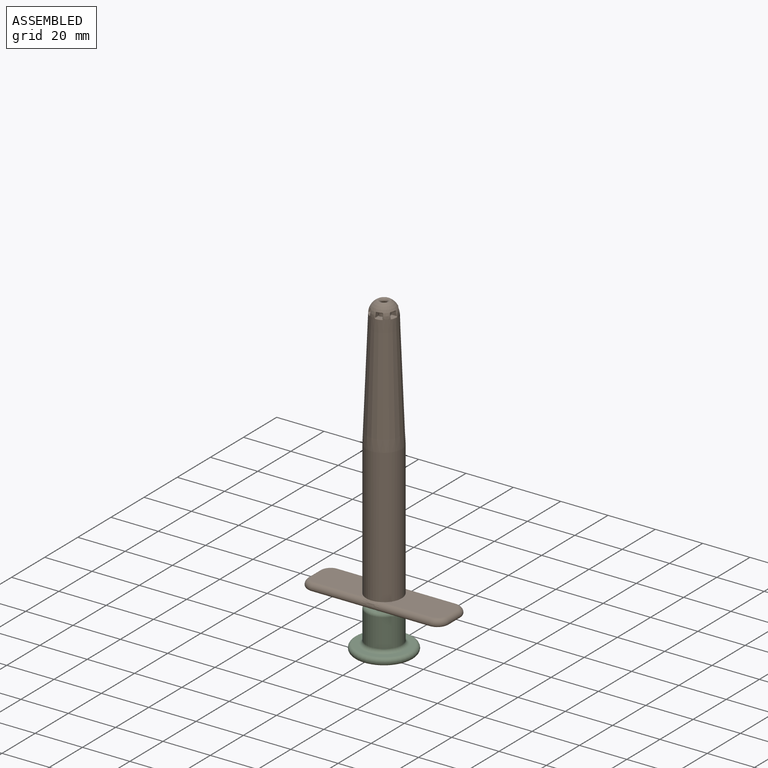
[diagram: assembled view]
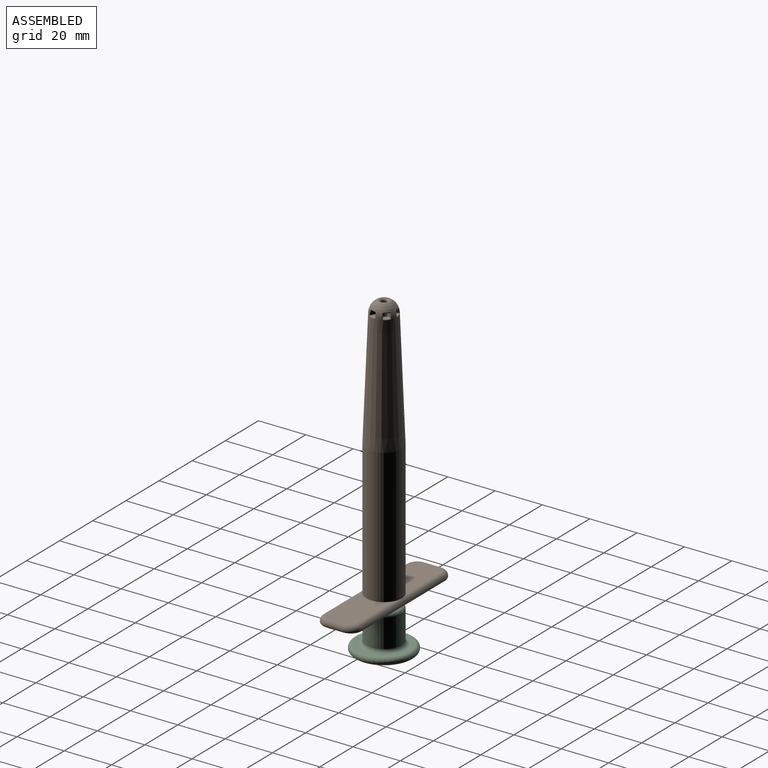
[diagram: assembled view, second angle]
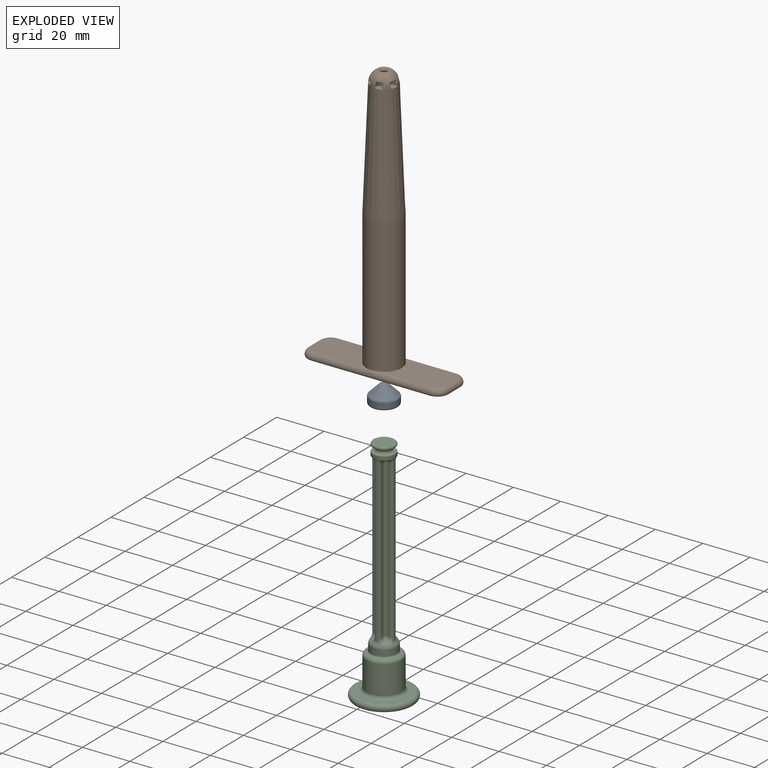
[diagram: exploded view]
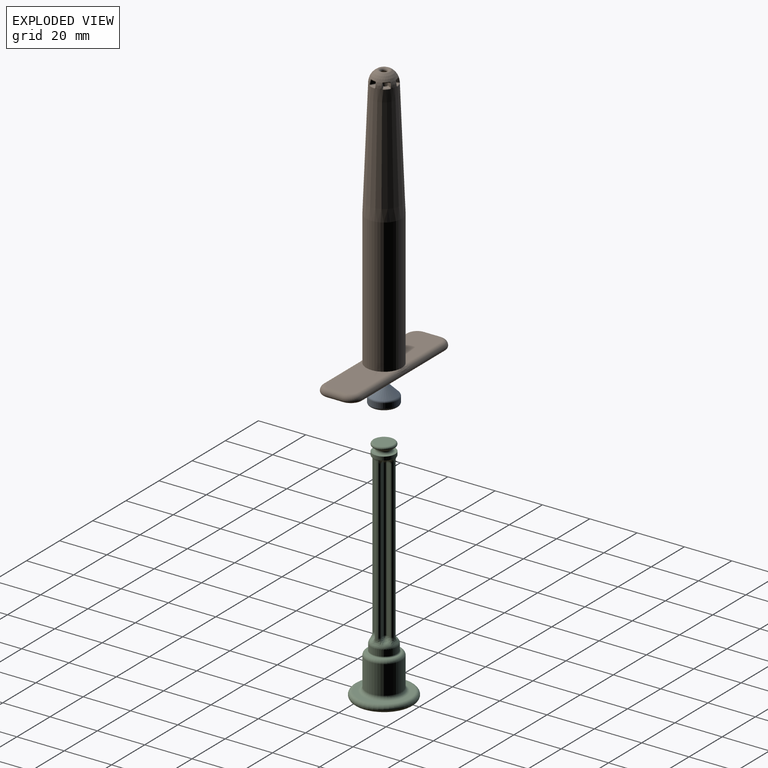
[diagram: exploded view, second angle]
ASSEMBLY  parts=3 mates=2
PART A: 12 faces, bbox 12.8x12.8x8 mm
  f0: cylinder r=5.9mm len=11.8mm, axis (0,0,-1), area 77.3mm2, adj f9,f11
  f1: plane 9.8x9.8mm, normal (0,0,-1), area 22.6mm2, adj f2,f11
  f2: torus R=4.1mm, axis (0,0,1), area 66.9mm2, adj f1,f4
  f3: cylinder r=4.75mm len=9.5mm, axis (0,0,-1), area 0.1mm2, adj f4,f7
  f4: torus R=4mm, axis (0,0,-1), area 32.1mm2, adj f2,f3
  f5: plane 8x8mm, normal (0,0,-1), area 50.3mm2, adj f7
  f6: plane 1.97x1.97mm, normal (0,0,1), area 3.1mm2, adj f10
  f7: torus R=4mm, axis (0,0,1), area 33.1mm2, adj f3,f5
  f8: cone r=1.4mm half-angle=45deg, axis (0,0,-1), area 126.9mm2, adj f9,f10
  f9: torus R=4.9mm, axis (0,0,1), area 28.6mm2, adj f0,f8
  f10: torus R=0.99mm, axis (0,0,1), area 6.7mm2, adj f6,f8
  f11: torus R=4.9mm, axis (0,0,1), area 54.6mm2, adj f0,f1
PART B: 206 faces, bbox 60.8x17.8x116.4 mm
  f0: plane 24.26x13mm, normal (0,0,1), area 276.8mm2, adj f5,f132,f133,f134,f135,f136
  f1: cylinder r=6mm len=12mm, axis (0,0,-1), area 377mm2, adj f6,f119
  f2: cylinder r=2.5mm len=26.31mm, axis (0,0,-1), area 402.9mm2, adj f8,f146,f147,f148,f150,f151,f155,f156
  f3: sphere r=5.5mm, area 114.2mm2, adj f7,f34,f36,f39,f41,f45,f46,f47
  f4: cylinder r=6mm len=69mm, axis (0,0,-1), area 2601.2mm2, adj f8,f120
  f5: cylinder r=7.5mm len=57mm, axis (0,0,-1), area 2686.1mm2, adj f0,f7,f124,f130,f131
  f6: plane 58x15mm, normal (0,0,-1), area 743.2mm2, adj f1,f137,f138,f139,f140,f141,f142,f143
  f7: cone r=5.5mm half-angle=2.3deg, axis (0,0,-1), area 2038.5mm2, adj f3,f5,f36,f37,f40,f42,f46,f50
  f8: cone r=6mm half-angle=45deg, axis (0,0,-1), area 132.2mm2, adj f2,f4
  f9: torus R=1.5mm, axis (0,0,-1), area 6.5mm2, adj f145,f159,f160,f165,f166,f171,f172,f179
  f10: plane 2.01x2.01mm, normal (0,0,-1), area 2.1mm2, adj f108,f114,f115,f172
  f11: plane 1.58x1.4mm, normal (-0.87,0.5,0), area 2.4mm2, adj f113,f114,f118,f167
  f12: plane 1.58x1.4mm, normal (0.5,-0.87,0), area 2.4mm2, adj f105,f108,f109,f154
  f13: plane 2.35x2.35mm, normal (0,0,1), area 2.9mm2, adj f105,f110,f113,f155
  f14: plane 1.77x1.72mm, normal (0,0,-1), area 2.1mm2, adj f94,f100,f101,f193
  f15: plane 1.58x1.4mm, normal (-0.87,-0.5,0), area 2.4mm2, adj f99,f100,f104,f188
  f16: plane 1.83x1.4mm, normal (1,0,0), area 2.4mm2, adj f91,f94,f95,f174
  f17: plane 2.04x2.03mm, normal (0,0,1), area 2.9mm2, adj f91,f96,f99,f175
  f18: plane 1.77x1.72mm, normal (0,0,-1), area 2.1mm2, adj f79,f84,f85,f205
  f19: plane 1.83x1.4mm, normal (0,-1,0), area 2.4mm2, adj f84,f87,f90,f196
  f20: plane 1.58x1.4mm, normal (0.5,0.87,0), area 2.4mm2, adj f78,f79,f80,f195
  f21: plane 2.04x2.03mm, normal (0,0,1), area 2.9mm2, adj f78,f83,f87,f183
  f22: plane 2.01x2.01mm, normal (0,0,-1), area 2.1mm2, adj f65,f70,f71,f198
  f23: plane 1.58x1.4mm, normal (0.87,-0.5,0), area 2.4mm2, adj f70,f73,f76,f177
  f24: plane 1.58x1.4mm, normal (-0.5,0.87,0), area 2.4mm2, adj f64,f65,f66,f191
  f25: plane 2.35x2.35mm, normal (0,0,1), area 2.9mm2, adj f64,f69,f73,f176
  f26: plane 1.77x1.72mm, normal (0,0,-1), area 2.1mm2, adj f52,f56,f57,f179
  f27: plane 1.83x1.4mm, normal (-1,0,0), area 2.4mm2, adj f57,f58,f62,f170
  f28: plane 1.58x1.4mm, normal (0.87,0.5,0), area 2.4mm2, adj f49,f51,f52,f157
  f29: plane 2.04x2.03mm, normal (0,0,1), area 2.9mm2, adj f49,f55,f58,f156
  f30: plane 1.77x1.72mm, normal (0,0,-1), area 2.1mm2, adj f38,f44,f45,f159
  f31: plane 1.83x1.4mm, normal (0,1,0), area 2.4mm2, adj f43,f44,f48,f149
  f32: plane 1.58x1.4mm, normal (-0.5,-0.87,0), area 2.4mm2, adj f35,f38,f39,f152
  f33: plane 2.04x2.03mm, normal (0,0,1), area 2.9mm2, adj f35,f40,f43,f146
  f34: torus R=2.25mm, axis (0,0,-1), area 24.2mm2, adj f3,f145
  f35: cylinder r=0.3mm len=1.75mm, axis (0.87,-0.5,0), area 0.8mm2, adj f32,f33,f36,f37,f148
  f36: bspline ~0.49x0.48mm, area 0.1mm2, adj f3,f7,f35,f37,f39
  f37: bspline ~0.69x0.5mm, area 0.2mm2, adj f7,f35,f36,f40
  f38: cylinder r=0.3mm len=1.61mm, axis (-0.87,0.5,0), area 0.7mm2, adj f30,f32,f41,f158,f165
  f39: torus R=5.19mm, axis (-0.5,-0.87,0), area 0.7mm2, adj f3,f32,f36,f41
  f40: torus R=5.21mm, axis (0,0,1), area 1mm2, adj f7,f33,f37,f42
  f41: bspline ~0.83x0.8mm, area 0.4mm2, adj f3,f38,f39,f45
  f42: bspline ~0.7x0.5mm, area 0.2mm2, adj f7,f40,f43,f46
  f43: cylinder r=0.3mm len=1.85mm, axis (-1,0,0), area 0.8mm2, adj f31,f33,f42,f46,f147
  f44: cylinder r=0.3mm len=1.69mm, axis (1,0,0), area 0.7mm2, adj f30,f31,f47,f153,f160
  f45: torus R=4.66mm, axis (0,0,1), area 1.2mm2, adj f3,f30,f41,f47
  f46: bspline ~0.49x0.38mm, area 0.1mm2, adj f3,f7,f42,f43,f48
  f47: bspline ~0.78x0.77mm, area 0.4mm2, adj f3,f44,f45,f48
  f48: torus R=5.19mm, axis (0,-1,0), area 0.7mm2, adj f3,f31,f46,f47
  f49: cylinder r=0.3mm len=1.75mm, axis (-0.5,0.87,0), area 0.8mm2, adj f28,f29,f50,f53,f151
  f50: bspline ~0.49x0.48mm, area 0.1mm2, adj f3,f7,f49,f51,f53
  f51: torus R=5.19mm, axis (0.87,0.5,0), area 0.7mm2, adj f3,f28,f50,f54
  f52: cylinder r=0.3mm len=1.61mm, axis (0.5,-0.87,0), area 0.7mm2, adj f26,f28,f54,f164,f171
  f53: bspline ~0.69x0.5mm, area 0.2mm2, adj f7,f49,f50,f55
  f54: bspline ~0.87x0.78mm, area 0.4mm2, adj f3,f51,f52,f56
  f55: torus R=5.21mm, axis (0,0,1), area 1mm2, adj f7,f29,f53,f59
  f56: torus R=4.66mm, axis (0,0,1), area 1.2mm2, adj f3,f26,f54,f60
  f57: cylinder r=0.3mm len=1.69mm, axis (0,1,0), area 0.7mm2, adj f26,f27,f60,f178,f186
  f58: cylinder r=0.3mm len=1.85mm, axis (0,-1,0), area 0.8mm2, adj f27,f29,f59,f61,f163
  f59: bspline ~0.7x0.5mm, area 0.2mm2, adj f7,f55,f58,f61
  f60: bspline ~0.8x0.68mm, area 0.4mm2, adj f3,f56,f57,f62
  f61: bspline ~0.49x0.38mm, area 0.1mm2, adj f3,f7,f58,f59,f62
  f62: torus R=5.19mm, axis (1,0,0), area 0.7mm2, adj f3,f27,f60,f61
  f63: bspline ~0.49x0.44mm, area 0.1mm2, adj f3,f7,f64,f66,f67
  f64: cylinder r=0.3mm len=1.75mm, axis (-0.87,-0.5,0), area 0.8mm2, adj f24,f25,f63,f67,f184
  f65: cylinder r=0.3mm len=1.61mm, axis (0.87,0.5,0), area 0.7mm2, adj f22,f24,f68,f197,f202
  f66: torus R=5.19mm, axis (0.5,-0.87,0), area 0.7mm2, adj f3,f24,f63,f68
  f67: bspline ~0.61x0.57mm, area 0.2mm2, adj f7,f63,f64,f69
  f68: bspline ~0.82x0.8mm, area 0.4mm2, adj f3,f65,f66,f71
  f69: torus R=5.21mm, axis (0,0,1), area 1mm2, adj f7,f25,f67,f72
  f70: cylinder r=0.3mm len=1.61mm, axis (-0.5,-0.87,0), area 0.7mm2, adj f22,f23,f74,f185,f192
  f71: torus R=4.66mm, axis (0,0,1), area 1.2mm2, adj f3,f22,f68,f74
  f72: bspline ~0.61x0.57mm, area 0.2mm2, adj f7,f69,f73,f75
  f73: cylinder r=0.3mm len=1.75mm, axis (0.5,0.87,0), area 0.8mm2, adj f23,f25,f72,f75,f169
  f74: bspline ~0.83x0.78mm, area 0.4mm2, adj f3,f70,f71,f76
  f75: bspline ~0.49x0.44mm, area 0.1mm2, adj f3,f7,f72,f73,f76
  f76: torus R=5.19mm, axis (0.87,-0.5,0), area 0.7mm2, adj f3,f23,f74,f75
  f77: bspline ~0.49x0.48mm, area 0.1mm2, adj f3,f7,f78,f80,f81
  f78: cylinder r=0.3mm len=1.75mm, axis (-0.87,0.5,0), area 0.8mm2, adj f20,f21,f77,f81,f189
  f79: cylinder r=0.3mm len=1.61mm, axis (0.87,-0.5,0), area 0.7mm2, adj f18,f20,f82,f200,f203
  f80: torus R=5.19mm, axis (0.5,0.87,0), area 0.7mm2, adj f3,f20,f77,f82
  f81: bspline ~0.69x0.5mm, area 0.2mm2, adj f7,f77,f78,f83
  f82: bspline ~0.83x0.8mm, area 0.4mm2, adj f3,f79,f80,f85
  f83: torus R=5.21mm, axis (0,0,1), area 1mm2, adj f7,f21,f81,f86
  f84: cylinder r=0.3mm len=1.69mm, axis (-1,0,0), area 0.7mm2, adj f18,f19,f88,f201,f204
  f85: torus R=4.66mm, axis (0,0,1), area 1.2mm2, adj f3,f18,f82,f88
  f86: bspline ~0.7x0.5mm, area 0.2mm2, adj f7,f83,f87,f89
  f87: cylinder r=0.3mm len=1.85mm, axis (1,0,0), area 0.8mm2, adj f19,f21,f86,f89,f190
  f88: bspline ~0.78x0.77mm, area 0.4mm2, adj f3,f84,f85,f90
  f89: bspline ~0.49x0.38mm, area 0.1mm2, adj f3,f7,f86,f87,f90
  f90: torus R=5.19mm, axis (0,-1,0), area 0.7mm2, adj f3,f19,f88,f89
  f91: cylinder r=0.3mm len=1.85mm, axis (0,1,0), area 0.8mm2, adj f16,f17,f92,f93,f168
  f92: bspline ~0.49x0.38mm, area 0.1mm2, adj f3,f7,f91,f93,f95
  f93: bspline ~0.7x0.5mm, area 0.2mm2, adj f7,f91,f92,f96
  f94: cylinder r=0.3mm len=1.69mm, axis (0,-1,0), area 0.7mm2, adj f14,f16,f97,f181,f187
  f95: torus R=5.19mm, axis (1,0,0), area 0.7mm2, adj f3,f16,f92,f97
  f96: torus R=5.21mm, axis (0,0,1), area 1mm2, adj f7,f17,f93,f98
  f97: bspline ~0.8x0.68mm, area 0.4mm2, adj f3,f94,f95,f101
  f98: bspline ~0.69x0.5mm, area 0.2mm2, adj f7,f96,f99,f102
  f99: cylinder r=0.3mm len=1.75mm, axis (0.5,-0.87,0), area 0.8mm2, adj f15,f17,f98,f102,f182
  f100: cylinder r=0.3mm len=1.61mm, axis (-0.5,0.87,0), area 0.7mm2, adj f14,f15,f103,f194,f199
  f101: torus R=4.66mm, axis (0,0,1), area 1.2mm2, adj f3,f14,f97,f103
  f102: bspline ~0.49x0.48mm, area 0.1mm2, adj f3,f7,f98,f99,f104
  f103: bspline ~0.87x0.78mm, area 0.4mm2, adj f3,f100,f101,f104
  f104: torus R=5.19mm, axis (0.87,0.5,0), area 0.7mm2, adj f3,f15,f102,f103
  f105: cylinder r=0.3mm len=1.75mm, axis (0.87,0.5,0), area 0.8mm2, adj f12,f13,f106,f107,f150
  f106: bspline ~0.49x0.44mm, area 0.1mm2, adj f3,f7,f105,f107,f109
  f107: bspline ~0.61x0.57mm, area 0.2mm2, adj f7,f105,f106,f110
  f108: cylinder r=0.3mm len=1.61mm, axis (-0.87,-0.5,0), area 0.7mm2, adj f10,f12,f111,f161,f166
  f109: torus R=5.19mm, axis (0.5,-0.87,0), area 0.7mm2, adj f3,f12,f106,f111
  f110: torus R=5.21mm, axis (0,0,1), area 1mm2, adj f7,f13,f107,f112
  f111: bspline ~0.82x0.8mm, area 0.4mm2, adj f3,f108,f109,f115
  f112: bspline ~0.61x0.57mm, area 0.2mm2, adj f7,f110,f113,f116
  f113: cylinder r=0.3mm len=1.75mm, axis (-0.5,-0.87,0), area 0.8mm2, adj f11,f13,f112,f116,f162
  f114: cylinder r=0.3mm len=1.61mm, axis (0.5,0.87,0), area 0.7mm2, adj f10,f11,f117,f173,f180
  f115: torus R=4.66mm, axis (0,0,1), area 1.2mm2, adj f3,f10,f111,f117
  f116: bspline ~0.49x0.44mm, area 0.1mm2, adj f3,f7,f112,f113,f118
  f117: bspline ~0.83x0.78mm, area 0.4mm2, adj f3,f114,f115,f118
  f118: torus R=5.19mm, axis (0.87,-0.5,0), area 0.7mm2, adj f3,f11,f116,f117
  f119: cone r=6mm half-angle=45deg, axis (0,0,-1), area 15mm2, adj f1,f121
  f120: cone r=5.5mm half-angle=45deg, axis (0,0,1), area 15mm2, adj f4,f121
  f121: torus R=5.92mm, axis (0,0,1), area 16.7mm2, adj f119,f120
  f122: plane 7.49x0.27mm, normal (0,-1,0), area 1mm2, adj f130,f139
  f123: plane 7.49x0.27mm, normal (0,1,0), area 1mm2, adj f131,f142
  f124: plane 24.26x13mm, normal (0,0,1), area 276.8mm2, adj f5,f125,f126,f127,f128,f129
  f125: cylinder r=2mm len=7mm, axis (0,1,0), area 22mm2, adj f124,f126,f127,f138
  f126: torus R=3mm, axis (0,0,1), area 21.1mm2, adj f124,f125,f128,f137
  f127: torus R=3mm, axis (0,0,1), area 21.1mm2, adj f124,f125,f129,f140
  f128: cylinder r=2mm len=21.26mm, axis (-1,0,0), area 66.8mm2, adj f124,f126,f130,f139
  f129: cylinder r=2mm len=21.26mm, axis (1,0,0), area 66.8mm2, adj f124,f127,f131,f142
  f130: bspline ~7.48x2mm, area 18.3mm2, adj f5,f122,f128,f132
  f131: bspline ~7.48x2mm, area 18.3mm2, adj f5,f123,f129,f133
  f132: cylinder r=2mm len=21.26mm, axis (-1,0,0), area 66.8mm2, adj f0,f130,f134,f139
  f133: cylinder r=2mm len=21.26mm, axis (1,0,0), area 66.8mm2, adj f0,f131,f135,f142
  f134: torus R=3mm, axis (0,0,1), area 21.1mm2, adj f0,f132,f136,f141
  f135: torus R=3mm, axis (0,0,1), area 21.1mm2, adj f0,f133,f136,f144
  f136: cylinder r=2mm len=7mm, axis (0,-1,0), area 22mm2, adj f0,f134,f135,f143
  f137: torus R=4mm, axis (0,0,1), area 11.4mm2, adj f6,f126,f138,f139
  f138: cylinder r=1mm len=7mm, axis (0,-1,0), area 11mm2, adj f6,f125,f137,f140
  f139: cylinder r=1mm len=50mm, axis (1,0,0), area 78.5mm2, adj f6,f122,f128,f132,f137,f141
  f140: torus R=4mm, axis (0,0,1), area 11.4mm2, adj f6,f127,f138,f142
  f141: torus R=4mm, axis (0,0,1), area 11.4mm2, adj f6,f134,f139,f143
  f142: cylinder r=1mm len=50mm, axis (-1,0,0), area 78.5mm2, adj f6,f123,f129,f133,f140,f144
  f143: cylinder r=1mm len=7mm, axis (0,1,0), area 11mm2, adj f6,f136,f141,f144
  f144: torus R=4mm, axis (0,0,1), area 11.4mm2, adj f6,f135,f142,f143
  f145: torus R=5.58mm, axis (0,0,-1), area 15.8mm2, adj f9,f34
  f146: torus R=3.5mm, axis (0,0,1), area 1.6mm2, adj f2,f33,f147,f148
  f147: bspline ~1.58x1.1mm, area 1.3mm2, adj f2,f43,f146,f149,f150
  f148: bspline ~1.46x1.37mm, area 1.3mm2, adj f2,f35,f146,f151,f152
  f149: cylinder r=1mm len=1.4mm, axis (0,0,-1), area 1.7mm2, adj f31,f147,f153,f154
  f150: bspline ~1.46x1.37mm, area 1.3mm2, adj f2,f105,f147,f154,f155
  f151: bspline ~1.58x1.46mm, area 1.3mm2, adj f2,f49,f148,f156,f157
  f152: cylinder r=1mm len=1.4mm, axis (0,0,-1), area 1.7mm2, adj f32,f148,f157,f158
  f153: bspline ~0.98x0.75mm, area 0.2mm2, adj f44,f149,f160,f161
  f154: cylinder r=1mm len=1.4mm, axis (0,0,-1), area 1.7mm2, adj f12,f149,f150,f161
  f155: torus R=3.5mm, axis (0,0,1), area 1.6mm2, adj f2,f13,f150,f162
  f156: torus R=3.5mm, axis (0,0,1), area 1.6mm2, adj f2,f29,f151,f163
  f157: cylinder r=1mm len=1.4mm, axis (0,0,-1), area 1.7mm2, adj f28,f151,f152,f164
  f158: bspline ~1.21x0.73mm, area 0.2mm2, adj f38,f152,f164,f165
  f159: torus R=3.23mm, axis (0,0,1), area 1mm2, adj f9,f30,f160,f165
  f160: bspline ~1.11x1.03mm, area 0.7mm2, adj f9,f44,f153,f159,f166
  f161: bspline ~1.12x0.73mm, area 0.2mm2, adj f108,f153,f154,f166
  f162: bspline ~1.58x1.44mm, area 1.3mm2, adj f2,f113,f155,f167,f168
  f163: bspline ~1.37x1.13mm, area 1.3mm2, adj f2,f58,f156,f169,f170
  f164: bspline ~1.21x0.73mm, area 0.2mm2, adj f52,f157,f158,f171
  f165: bspline ~1.22x0.88mm, area 0.7mm2, adj f9,f38,f158,f159,f171
  f166: bspline ~1.29x1.02mm, area 0.7mm2, adj f9,f108,f160,f161,f172
  f167: cylinder r=1mm len=1.4mm, axis (0,0,-1), area 1.7mm2, adj f11,f162,f173,f174
  f168: bspline ~1.37x1.13mm, area 1.3mm2, adj f2,f91,f162,f174,f175
  f169: bspline ~1.58x1.44mm, area 1.3mm2, adj f2,f73,f163,f176,f177
  f170: cylinder r=1mm len=1.4mm, axis (0,0,-1), area 1.7mm2, adj f27,f163,f177,f178
  f171: bspline ~1.2x0.81mm, area 0.7mm2, adj f9,f52,f164,f165,f179
  f172: torus R=3.23mm, axis (0,0,1), area 1mm2, adj f9,f10,f166,f180
  f173: bspline ~1.12x0.73mm, area 0.2mm2, adj f114,f167,f180,f181
  f174: cylinder r=1mm len=1.4mm, axis (0,0,-1), area 1.7mm2, adj f16,f167,f168,f181
  f175: torus R=3.5mm, axis (0,0,1), area 1.6mm2, adj f2,f17,f168,f182
  f176: torus R=3.5mm, axis (0,0,1), area 1.6mm2, adj f2,f25,f169,f184
  f177: cylinder r=1mm len=1.4mm, axis (0,0,-1), area 1.7mm2, adj f23,f169,f170,f185
  f178: bspline ~0.98x0.75mm, area 0.2mm2, adj f57,f170,f185,f186
  f179: torus R=3.23mm, axis (0,0,1), area 1mm2, adj f9,f26,f171,f186
  f180: bspline ~1.31x1.09mm, area 0.7mm2, adj f9,f114,f172,f173,f187
  f181: bspline ~0.98x0.75mm, area 0.2mm2, adj f94,f173,f174,f187
  f182: bspline ~1.58x1.46mm, area 1.3mm2, adj f2,f99,f175,f188,f189
  f183: torus R=3.5mm, axis (0,0,1), area 1.6mm2, adj f2,f21,f189,f190
  f184: bspline ~1.46x1.37mm, area 1.3mm2, adj f2,f64,f176,f190,f191
  f185: bspline ~1.12x0.73mm, area 0.2mm2, adj f70,f177,f178,f192
  f186: bspline ~1.02x0.99mm, area 0.7mm2, adj f9,f57,f178,f179,f192
  f187: bspline ~1.02x0.99mm, area 0.7mm2, adj f9,f94,f180,f181,f193
  f188: cylinder r=1mm len=1.4mm, axis (0,0,-1), area 1.7mm2, adj f15,f182,f194,f195
  f189: bspline ~1.46x1.37mm, area 1.3mm2, adj f2,f78,f182,f183,f195
  f190: bspline ~1.58x1.1mm, area 1.3mm2, adj f2,f87,f183,f184,f196
  f191: cylinder r=1mm len=1.4mm, axis (0,0,-1), area 1.7mm2, adj f24,f184,f196,f197
  f192: bspline ~1.31x1.09mm, area 0.7mm2, adj f9,f70,f185,f186,f198
  f193: torus R=3.23mm, axis (0,0,1), area 1mm2, adj f9,f14,f187,f199
  f194: bspline ~1.21x0.73mm, area 0.2mm2, adj f100,f188,f199,f200
  f195: cylinder r=1mm len=1.4mm, axis (0,0,-1), area 1.7mm2, adj f20,f188,f189,f200
  f196: cylinder r=1mm len=1.4mm, axis (0,0,-1), area 1.7mm2, adj f19,f190,f191,f201
  f197: bspline ~1.12x0.73mm, area 0.2mm2, adj f65,f191,f201,f202
  f198: torus R=3.23mm, axis (0,0,1), area 1mm2, adj f9,f22,f192,f202
  f199: bspline ~1.2x0.81mm, area 0.7mm2, adj f9,f100,f193,f194,f203
  f200: bspline ~1.21x0.73mm, area 0.2mm2, adj f79,f194,f195,f203
  f201: bspline ~0.98x0.75mm, area 0.2mm2, adj f84,f196,f197,f204
  f202: bspline ~1.26x0.98mm, area 0.7mm2, adj f9,f65,f197,f198,f204
  f203: bspline ~1.2x0.81mm, area 0.7mm2, adj f9,f79,f199,f200,f205
  f204: bspline ~1.11x1.03mm, area 0.7mm2, adj f9,f84,f201,f202,f205
  f205: torus R=3.23mm, axis (0,0,1), area 1mm2, adj f9,f18,f203,f204
PART C: 108 faces, bbox 27.1x27.1x98 mm
  f0: plane 0.1x0.1mm, normal (0,0,-1), area 0mm2, adj f17,f83,f86
  f1: plane 0.1x0.1mm, normal (0,0,-1), area 0mm2, adj f17,f89,f92
  f2: plane 0.1x0.1mm, normal (0,0,-1), area 0mm2, adj f17,f67,f70
  f3: cylinder r=5.5mm len=11mm, axis (0,0,-1), area 86.4mm2, adj f19,f107
  f4: plane 66.21x1.25mm, normal (0,-1,0), area 82.6mm2, adj f20,f50,f59,f70,f72
  f5: plane 66.21x1.26mm, normal (-1,0,0), area 82.6mm2, adj f21,f59,f61,f65,f67
  f6: plane 68.58x0.94mm, normal (0,-1,0), area 34.4mm2, adj f23,f33,f34,f61,f63,f66
  f7: plane 66.21x1.25mm, normal (1,0,0), area 82.6mm2, adj f25,f34,f53,f71,f73
  f8: plane 66.21x1.25mm, normal (0,-1,0), area 82.6mm2, adj f27,f40,f53,f76,f78
  f9: plane 68.58x0.94mm, normal (1,0,0), area 34.4mm2, adj f29,f39,f40,f45,f46,f82
  f10: plane 66.22x1.26mm, normal (0,1,0), area 82.6mm2, adj f31,f46,f55,f87,f89
  f11: plane 66.21x1.25mm, normal (1,0,0), area 82.6mm2, adj f30,f43,f55,f92,f94
  f12: plane 68.58x0.94mm, normal (0,1,0), area 34.4mm2, adj f28,f36,f37,f42,f43,f93
  f13: plane 66.22x1.26mm, normal (-1,0,0), area 82.6mm2, adj f26,f37,f57,f86,f88
  f14: plane 66.21x1.26mm, normal (0,1,0), area 82.6mm2, adj f24,f47,f57,f81,f83
  f15: plane 68.58x0.94mm, normal (-1,0,0), area 34.4mm2, adj f22,f47,f48,f50,f51,f77
  f16: plane 0.1x0.1mm, normal (0,0,-1), area 0mm2, adj f17,f73,f76
  f17: cylinder r=4.67mm len=9.34mm, axis (0,0,-1), area 44mm2, adj f0,f1,f2,f16,f18,f64,f65,f66
  f18: plane 9.34x9.34mm, normal (0,0,1), area 18.3mm2, adj f17,f98
  f19: torus R=3.5mm, axis (0,0,1), area 45.7mm2, adj f3,f20,f21,f22,f23,f24,f25,f26
  f20: bspline ~5.29x3.62mm, area 3.8mm2, adj f4,f19,f51,f52,f60
  f21: bspline ~5.27x3.45mm, area 3.8mm2, adj f5,f19,f60,f62,f63
  f22: bspline ~6.91x2.15mm, area 3.7mm2, adj f15,f19,f49,f52
  f23: bspline ~6.91x2.15mm, area 3.7mm2, adj f6,f19,f32,f62
  f24: bspline ~5.27x3.45mm, area 3.8mm2, adj f14,f19,f48,f49,f58
  f25: bspline ~5.29x3.62mm, area 3.8mm2, adj f7,f19,f32,f33,f54
  f26: bspline ~5.3x3.47mm, area 3.8mm2, adj f13,f19,f35,f36,f58
  f27: bspline ~4.98x3.48mm, area 3.8mm2, adj f8,f19,f38,f39,f54
  f28: bspline ~6.91x2.15mm, area 3.7mm2, adj f12,f19,f35,f41
  f29: bspline ~6.91x2.15mm, area 3.7mm2, adj f9,f19,f38,f44
  f30: bspline ~4.98x3.48mm, area 3.8mm2, adj f11,f19,f41,f42,f56
  f31: bspline ~5.3x3.47mm, area 3.8mm2, adj f10,f19,f44,f45,f56
  f32: bspline ~2.39x1.99mm, area 1.2mm2, adj f23,f25,f33
  f33: bspline ~2.54x1.38mm, area 1.5mm2, adj f6,f25,f32,f34
  f34: cylinder r=1mm len=67.41mm, axis (0,0,1), area 105mm2, adj f6,f7,f33,f68
  f35: bspline ~2.64x2.1mm, area 1.2mm2, adj f26,f28,f36
  f36: bspline ~2.54x1.38mm, area 1.5mm2, adj f12,f26,f35,f37
  f37: cylinder r=1mm len=67.41mm, axis (0,0,1), area 105mm2, adj f12,f13,f36,f90
  f38: bspline ~2.64x2.1mm, area 1.2mm2, adj f27,f29,f39
  f39: bspline ~2.54x1.38mm, area 1.5mm2, adj f9,f27,f38,f40
  f40: cylinder r=1mm len=67.41mm, axis (0,0,1), area 105mm2, adj f8,f9,f39,f80
  f41: bspline ~2.64x2.1mm, area 1.2mm2, adj f28,f30,f42
  f42: bspline ~2.54x1.38mm, area 1.5mm2, adj f12,f30,f41,f43
  f43: cylinder r=1mm len=67.41mm, axis (0,0,-1), area 105mm2, adj f11,f12,f42,f95
  f44: bspline ~2.39x1.99mm, area 1.2mm2, adj f29,f31,f45
  f45: bspline ~2.54x1.38mm, area 1.5mm2, adj f9,f31,f44,f46
  f46: cylinder r=1mm len=67.41mm, axis (0,0,-1), area 105mm2, adj f9,f10,f45,f84
  f47: cylinder r=1mm len=67.41mm, axis (0,0,1), area 105mm2, adj f14,f15,f48,f79
  f48: bspline ~2.54x1.38mm, area 1.5mm2, adj f15,f24,f47,f49
  f49: bspline ~2.64x2.1mm, area 1.2mm2, adj f22,f24,f48
  f50: cylinder r=1mm len=67.41mm, axis (0,0,-1), area 105mm2, adj f4,f15,f51,f74
  f51: bspline ~2.54x1.38mm, area 1.5mm2, adj f15,f20,f50,f52
  f52: bspline ~2.64x2.1mm, area 1.2mm2, adj f20,f22,f51
  f53: cylinder r=1mm len=66.03mm, axis (0,0,1), area 103.7mm2, adj f7,f8,f54,f75
  f54: bspline ~2.37x1.62mm, area 2mm2, adj f25,f27,f53
  f55: cylinder r=1mm len=66.03mm, axis (0,0,-1), area 103.7mm2, adj f10,f11,f56,f91
  f56: bspline ~2.37x1.62mm, area 2mm2, adj f30,f31,f55
  f57: cylinder r=1mm len=66.03mm, axis (0,0,1), area 103.7mm2, adj f13,f14,f58,f85
  f58: bspline ~2.37x1.62mm, area 2mm2, adj f24,f26,f57
  f59: cylinder r=1mm len=66.03mm, axis (0,0,-1), area 103.7mm2, adj f4,f5,f60,f69
  f60: bspline ~2.37x1.62mm, area 2mm2, adj f20,f21,f59
  f61: cylinder r=1mm len=67.41mm, axis (0,0,-1), area 105mm2, adj f5,f6,f63,f64
  f62: bspline ~2.64x2.1mm, area 1.2mm2, adj f21,f23,f63
  f63: bspline ~2.54x1.38mm, area 1.5mm2, adj f6,f21,f61,f62
  f64: bspline ~3.37x2.1mm, area 3.5mm2, adj f17,f61,f65,f66
  f65: bspline ~2.49x2.46mm, area 0.3mm2, adj f5,f17,f64,f67
  f66: bspline ~1.08x0.81mm, area 0.4mm2, adj f6,f17,f64,f68
  f67: cylinder r=2mm len=2mm, axis (0,1,0), area 2.3mm2, adj f2,f5,f65,f69
  f68: bspline ~3.23x2.03mm, area 3.5mm2, adj f17,f34,f66,f71
  f69: bspline ~2.39x2mm, area 2.2mm2, adj f59,f67,f70
  f70: cylinder r=2mm len=2mm, axis (-1,0,0), area 2.3mm2, adj f2,f4,f69,f72
  f71: bspline ~2.49x2.46mm, area 0.3mm2, adj f7,f17,f68,f73
  f72: bspline ~2.49x2.46mm, area 0.3mm2, adj f4,f17,f70,f74
  f73: cylinder r=2mm len=2mm, axis (0,-1,0), area 2.3mm2, adj f7,f16,f71,f75
  f74: bspline ~3.23x2.03mm, area 3.5mm2, adj f17,f50,f72,f77
  f75: bspline ~2.39x2mm, area 3.3mm2, adj f53,f73,f76
  f76: cylinder r=2mm len=2mm, axis (-1,0,0), area 2.3mm2, adj f8,f16,f75,f78
  f77: bspline ~1.08x0.81mm, area 0.4mm2, adj f15,f17,f74,f79
  f78: bspline ~2.49x2.46mm, area 0.3mm2, adj f8,f17,f76,f80
  f79: bspline ~3.37x2.1mm, area 3.5mm2, adj f17,f47,f77,f81
  f80: bspline ~3.37x2.1mm, area 3.5mm2, adj f17,f40,f78,f82
  f81: bspline ~2.49x2.46mm, area 0.3mm2, adj f14,f17,f79,f83
  f82: bspline ~1.08x0.81mm, area 0.4mm2, adj f9,f17,f80,f84
  f83: cylinder r=2mm len=2mm, axis (1,0,0), area 2.3mm2, adj f0,f14,f81,f85
  f84: bspline ~3.23x2.03mm, area 3.5mm2, adj f17,f46,f82,f87
  f85: bspline ~2.39x2mm, area 2.2mm2, adj f57,f83,f86
  f86: cylinder r=2mm len=2mm, axis (0,1,0), area 2.3mm2, adj f0,f13,f85,f88
  f87: bspline ~2.49x2.46mm, area 0.3mm2, adj f10,f17,f84,f89
  f88: bspline ~2.49x2.46mm, area 0.3mm2, adj f13,f17,f86,f90
  f89: cylinder r=2mm len=2mm, axis (1,0,0), area 2.3mm2, adj f1,f10,f87,f91
  f90: bspline ~3.23x2.03mm, area 3.5mm2, adj f17,f37,f88,f93
  f91: bspline ~2.39x2mm, area 3.3mm2, adj f55,f89,f92
  f92: cylinder r=2mm len=2mm, axis (0,-1,0), area 2.3mm2, adj f1,f11,f91,f94
  f93: bspline ~1.08x0.81mm, area 0.4mm2, adj f12,f17,f90,f95
  f94: bspline ~2.49x2.46mm, area 0.3mm2, adj f11,f17,f92,f95
  f95: bspline ~3.37x2.1mm, area 3.5mm2, adj f17,f43,f93,f94
  f96: cylinder r=4.67mm len=9.34mm, axis (0,0,-1), area 0.1mm2, adj f99,f100
  f97: plane 7.84x7.84mm, normal (0,0,1), area 48.3mm2, adj f100
  f98: torus R=4mm, axis (0,0,1), area 65.3mm2, adj f18,f99
  f99: torus R=3.92mm, axis (0,0,-1), area 31.7mm2, adj f96,f98
  f100: torus R=3.92mm, axis (0,0,1), area 32.6mm2, adj f96,f97
  f101: cylinder r=7.5mm len=15mm, axis (0,0,1), area 565.5mm2, adj f105,f106
  f102: plane 22x22mm, normal (0,0,-1), area 380.1mm2, adj f104
  f103: plane 22x22mm, normal (0,0,1), area 125.7mm2, adj f104,f106
  f104: torus R=11mm, axis (0,0,-1), area 354mm2, adj f102,f103
  f105: torus R=6mm, axis (0,0,-1), area 103mm2, adj f101,f107
  f106: torus R=9mm, axis (0,0,-1), area 119.1mm2, adj f101,f103
  f107: torus R=6mm, axis (0,0,-1), area 28mm2, adj f3,f105
PLACE A t=(45.24,28.8,29.41)mm
PLACE B t=(45.24,28.8,30.73)mm fixed
PLACE C t=(45.24,28.8,29.41)mm
MATE slider B.f5 <-> A.f0  axis (0,0,-1) through (45.24,28.8,33.73)mm
MATE fastened A.f3 <-> C.f96  axis (0,0,-1) through (45.24,28.8,109.41)mm
